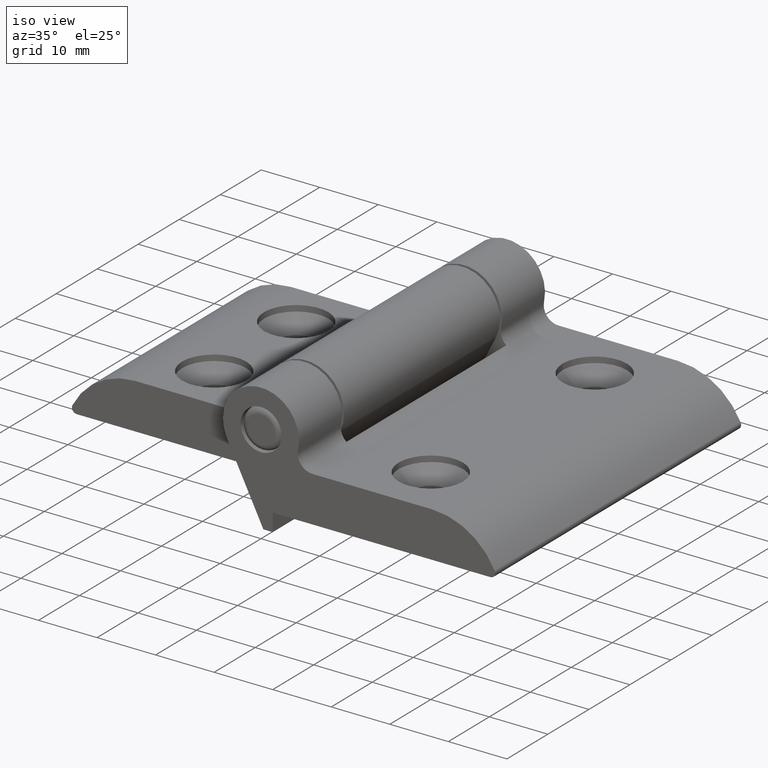
[diagram: clean part render]
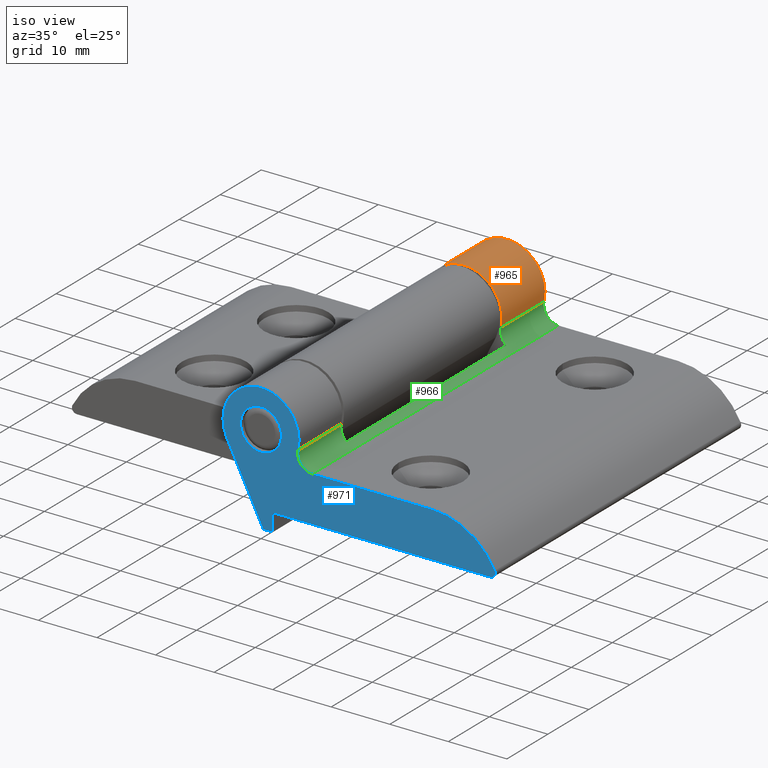
[diagram: same view with three faces highlighted in distinct colors, each labeled with its STEP entity id]
A machine part, iso view with three faces highlighted in distinct colors.
Their STEP definitions:

[orange] entity #965 — the highlighted cylindrical surface (partial cylindrical patch) has radius 6.5 mm, axis along (0, 1, 0).
#92=CYLINDRICAL_SURFACE('',#1127,6.5);
#122=FACE_OUTER_BOUND('',#173,.T.);
#173=EDGE_LOOP('',(#743,#744,#745,#746));
#248=LINE('',#1616,#315);
#251=LINE('',#1624,#318);
#315=VECTOR('',#1312,10.);
#318=VECTOR('',#1321,10.);
#371=CIRCLE('',#1116,6.5);
#375=CIRCLE('',#1128,6.5);
#441=VERTEX_POINT('',#1575);
#442=VERTEX_POINT('',#1577);
#455=VERTEX_POINT('',#1615);
#457=VERTEX_POINT('',#1623);
#549=EDGE_CURVE('',#442,#441,#371,.T.);
#568=EDGE_CURVE('',#442,#455,#248,.T.);
#572=EDGE_CURVE('',#441,#457,#251,.T.);
#573=EDGE_CURVE('',#455,#457,#375,.T.);
#743=ORIENTED_EDGE('',*,*,#549,.T.);
#744=ORIENTED_EDGE('',*,*,#572,.T.);
#745=ORIENTED_EDGE('',*,*,#573,.F.);
#746=ORIENTED_EDGE('',*,*,#568,.F.);
#965=ADVANCED_FACE('',(#122),#92,.T.);
#1116=AXIS2_PLACEMENT_3D('',#1578,#1278,#1279);
#1127=AXIS2_PLACEMENT_3D('',#1622,#1319,#1320);
#1128=AXIS2_PLACEMENT_3D('',#1625,#1322,#1323);
#1278=DIRECTION('center_axis',(-9.14356323852182E-17,1.,-3.21321186532551E-17));
#1279=DIRECTION('ref_axis',(-0.893929642887644,0.,-0.448207310925167));
#1312=DIRECTION('',(0.,1.,0.));
#1319=DIRECTION('center_axis',(0.,1.,0.));
#1320=DIRECTION('ref_axis',(-0.120042723176291,0.,0.992768726649072));
#1321=DIRECTION('',(0.,1.,0.));
#1322=DIRECTION('center_axis',(0.,1.,0.));
#1323=DIRECTION('ref_axis',(-0.893929642887644,0.,-0.448207310925167));
#1575=CARTESIAN_POINT('',(6.3374742797832,19.5,-1.44444444444445));
#1577=CARTESIAN_POINT('',(-5.81054267876969,19.5,-2.91334752101359));
#1578=CARTESIAN_POINT('Origin',(0.,19.5,-1.38777878078145E-15));
#1615=CARTESIAN_POINT('',(-5.81054267876969,30.,-2.91334752101359));
#1616=CARTESIAN_POINT('',(-5.81054267876969,0.,-2.91334752101359));
#1622=CARTESIAN_POINT('Origin',(0.,0.,-1.38777878078145E-15));
#1623=CARTESIAN_POINT('',(6.3374742797832,30.,-1.44444444444445));
#1624=CARTESIAN_POINT('',(6.3374742797832,0.,-1.44444444444445));
#1625=CARTESIAN_POINT('Origin',(0.,30.,-1.38777878078145E-15));

[blue] entity #971 — the highlighted planar face has unit normal (0, 1, 0).
#37=B_SPLINE_CURVE_WITH_KNOTS('',3,(#1668,#1669,#1670,#1671,#1672,#1673),
 .UNSPECIFIED.,.F.,.F.,(4,1,1,4),(0.228202346334164,0.285714285714286,0.571428571428571,
1.),.UNSPECIFIED.);
#42=B_SPLINE_CURVE_WITH_KNOTS('',3,(#1696,#1697,#1698,#1699),
 .UNSPECIFIED.,.F.,.F.,(4,4),(0.,0.228202346334164),.UNSPECIFIED.);
#55=FACE_BOUND('',#182,.T.);
#75=PLANE('',#1138);
#128=FACE_OUTER_BOUND('',#181,.T.);
#181=EDGE_LOOP('',(#782,#783,#784,#785,#786,#787,#788,#789,#790,#791));
#182=EDGE_LOOP('',(#792));
#237=LINE('',#1594,#304);
#242=LINE('',#1604,#309);
#246=LINE('',#1612,#313);
#256=LINE('',#1702,#323);
#257=LINE('',#1706,#324);
#304=VECTOR('',#1291,10.);
#309=VECTOR('',#1300,10.);
#313=VECTOR('',#1308,10.);
#323=VECTOR('',#1346,10.);
#324=VECTOR('',#1351,10.);
#374=CIRCLE('',#1126,6.5);
#376=CIRCLE('',#1130,2.5);
#380=CIRCLE('',#1136,3.5);
#381=CIRCLE('',#1139,12.);
#448=VERTEX_POINT('',#1591);
#449=VERTEX_POINT('',#1593);
#452=VERTEX_POINT('',#1603);
#454=VERTEX_POINT('',#1611);
#456=VERTEX_POINT('',#1619);
#458=VERTEX_POINT('',#1627);
#462=VERTEX_POINT('',#1639);
#463=VERTEX_POINT('',#1666);
#464=VERTEX_POINT('',#1667);
#468=VERTEX_POINT('',#1691);
#469=VERTEX_POINT('',#1704);
#557=EDGE_CURVE('',#449,#448,#237,.T.);
#562=EDGE_CURVE('',#452,#449,#242,.T.);
#566=EDGE_CURVE('',#454,#452,#246,.T.);
#570=EDGE_CURVE('',#456,#454,#374,.T.);
#574=EDGE_CURVE('',#458,#456,#376,.T.);
#581=EDGE_CURVE('',#462,#462,#380,.T.);
#582=EDGE_CURVE('',#463,#464,#37,.T.);
#587=EDGE_CURVE('',#468,#463,#42,.T.);
#589=EDGE_CURVE('',#448,#464,#256,.T.);
#590=EDGE_CURVE('',#468,#469,#381,.T.);
#591=EDGE_CURVE('',#469,#458,#257,.T.);
#782=ORIENTED_EDGE('',*,*,#582,.F.);
#783=ORIENTED_EDGE('',*,*,#587,.F.);
#784=ORIENTED_EDGE('',*,*,#590,.T.);
#785=ORIENTED_EDGE('',*,*,#591,.T.);
#786=ORIENTED_EDGE('',*,*,#574,.T.);
#787=ORIENTED_EDGE('',*,*,#570,.T.);
#788=ORIENTED_EDGE('',*,*,#566,.T.);
#789=ORIENTED_EDGE('',*,*,#562,.T.);
#790=ORIENTED_EDGE('',*,*,#557,.T.);
#791=ORIENTED_EDGE('',*,*,#589,.T.);
#792=ORIENTED_EDGE('',*,*,#581,.T.);
#971=ADVANCED_FACE('',(#128,#55),#75,.F.);
#1126=AXIS2_PLACEMENT_3D('',#1620,#1316,#1317);
#1130=AXIS2_PLACEMENT_3D('',#1628,#1326,#1327);
#1136=AXIS2_PLACEMENT_3D('',#1641,#1341,#1342);
#1138=AXIS2_PLACEMENT_3D('',#1703,#1347,#1348);
#1139=AXIS2_PLACEMENT_3D('',#1705,#1349,#1350);
#1291=DIRECTION('',(1.85037170770859E-16,0.,1.));
#1300=DIRECTION('',(1.,0.,0.));
#1308=DIRECTION('',(0.448207310925167,0.,-0.893929642887644));
#1316=DIRECTION('center_axis',(0.,-1.,0.));
#1317=DIRECTION('ref_axis',(-0.893929642887644,0.,-0.448207310925167));
#1326=DIRECTION('center_axis',(0.,1.,0.));
#1327=DIRECTION('ref_axis',(0.,0.,1.));
#1341=DIRECTION('center_axis',(0.,1.,0.));
#1342=DIRECTION('ref_axis',(-1.,0.,0.));
#1346=DIRECTION('',(1.,0.,0.));
#1347=DIRECTION('center_axis',(0.,1.,0.));
#1348=DIRECTION('ref_axis',(0.,0.,1.));
#1349=DIRECTION('center_axis',(0.,-1.,0.));
#1350=DIRECTION('ref_axis',(0.,0.,1.));
#1351=DIRECTION('',(-1.,0.,1.087908341283E-16));
#1591=CARTESIAN_POINT('',(2.,-30.,-12.3));
#1593=CARTESIAN_POINT('',(2.,-30.,-15.3));
#1594=CARTESIAN_POINT('',(2.,-30.,-12.3));
#1603=CARTESIAN_POINT('',(0.399999999999999,-30.,-15.3));
#1604=CARTESIAN_POINT('',(2.,-30.,-15.3));
#1611=CARTESIAN_POINT('',(-5.81054267876969,-30.,-2.91334752101359));
#1612=CARTESIAN_POINT('',(0.399999999999999,-30.,-15.3));
#1619=CARTESIAN_POINT('',(6.3374742797832,-30.,-1.44444444444445));
#1620=CARTESIAN_POINT('Origin',(0.,-30.,-1.38777878078145E-15));
#1627=CARTESIAN_POINT('',(8.77496438739212,-30.,-4.5));
#1628=CARTESIAN_POINT('Origin',(8.77496438739212,-30.,-2.));
#1639=CARTESIAN_POINT('',(3.5,-30.,-1.81640516048302E-15));
#1641=CARTESIAN_POINT('Origin',(0.,-30.,-1.38777878078145E-15));
#1666=CARTESIAN_POINT('',(40.,-30.,-11.4883954511528));
#1667=CARTESIAN_POINT('',(39.1883954511527,-30.,-12.3));
#1668=CARTESIAN_POINT('Ctrl Pts',(39.9997218378176,-30.,-11.488161456285));
#1669=CARTESIAN_POINT('Ctrl Pts',(39.999756441912,-30.,-11.5197933238789));
#1670=CARTESIAN_POINT('Ctrl Pts',(39.9889176891916,-30.,-11.7085911498544));
#1671=CARTESIAN_POINT('Ctrl Pts',(39.8135844392406,-30.,-12.1166805367457));
#1672=CARTESIAN_POINT('Ctrl Pts',(39.4243687454637,-30.,-12.3));
#1673=CARTESIAN_POINT('Ctrl Pts',(39.1883954511527,-30.,-12.3));
#1691=CARTESIAN_POINT('',(39.9140261061395,-30.,-11.1248543994776));
#1696=CARTESIAN_POINT('Ctrl Pts',(39.9140261061395,-30.,-11.1248543994776));
#1697=CARTESIAN_POINT('Ctrl Pts',(39.9703080039166,-30.,-11.237193487896));
#1698=CARTESIAN_POINT('Ctrl Pts',(39.9995845317968,-30.,-11.3626489717178));
#1699=CARTESIAN_POINT('Ctrl Pts',(39.9997218378176,-30.,-11.488161456285));
#1702=CARTESIAN_POINT('',(40.,-30.,-12.3));
#1703=CARTESIAN_POINT('Origin',(14.258255673457,-30.,-7.13183282613105));
#1704=CARTESIAN_POINT('',(29.1851953323234,-30.,-4.5));
#1705=CARTESIAN_POINT('Origin',(29.1851953323234,-30.,-16.5));
#1706=CARTESIAN_POINT('',(8.77496438739212,-30.,-4.5));

[green] entity #966 — the highlighted cylindrical surface (edge-blend (fillet) strip) has radius 2.5 mm, axis along (0, 1, 0).
#93=CYLINDRICAL_SURFACE('',#1129,2.5);
#123=FACE_OUTER_BOUND('',#174,.T.);
#174=EDGE_LOOP('',(#747,#748,#749,#750,#751,#752,#753,#754));
#230=LINE('',#1572,#297);
#250=LINE('',#1621,#317);
#251=LINE('',#1624,#318);
#252=LINE('',#1630,#319);
#297=VECTOR('',#1272,10.);
#317=VECTOR('',#1318,10.);
#318=VECTOR('',#1321,10.);
#319=VECTOR('',#1328,10.);
#366=CIRCLE('',#1109,2.5);
#370=CIRCLE('',#1115,2.5);
#376=CIRCLE('',#1130,2.5);
#377=CIRCLE('',#1131,2.5);
#430=VERTEX_POINT('',#1550);
#431=VERTEX_POINT('',#1551);
#440=VERTEX_POINT('',#1571);
#441=VERTEX_POINT('',#1575);
#456=VERTEX_POINT('',#1619);
#457=VERTEX_POINT('',#1623);
#458=VERTEX_POINT('',#1627);
#459=VERTEX_POINT('',#1629);
#536=EDGE_CURVE('',#430,#431,#366,.T.);
#546=EDGE_CURVE('',#440,#430,#230,.T.);
#548=EDGE_CURVE('',#441,#440,#370,.T.);
#571=EDGE_CURVE('',#456,#431,#250,.T.);
#572=EDGE_CURVE('',#441,#457,#251,.T.);
#574=EDGE_CURVE('',#458,#456,#376,.T.);
#575=EDGE_CURVE('',#459,#458,#252,.T.);
#576=EDGE_CURVE('',#457,#459,#377,.T.);
#747=ORIENTED_EDGE('',*,*,#548,.T.);
#748=ORIENTED_EDGE('',*,*,#546,.T.);
#749=ORIENTED_EDGE('',*,*,#536,.T.);
#750=ORIENTED_EDGE('',*,*,#571,.F.);
#751=ORIENTED_EDGE('',*,*,#574,.F.);
#752=ORIENTED_EDGE('',*,*,#575,.F.);
#753=ORIENTED_EDGE('',*,*,#576,.F.);
#754=ORIENTED_EDGE('',*,*,#572,.F.);
#966=ADVANCED_FACE('',(#123),#93,.F.);
#1109=AXIS2_PLACEMENT_3D('',#1552,#1256,#1257);
#1115=AXIS2_PLACEMENT_3D('',#1576,#1276,#1277);
#1129=AXIS2_PLACEMENT_3D('',#1626,#1324,#1325);
#1130=AXIS2_PLACEMENT_3D('',#1628,#1326,#1327);
#1131=AXIS2_PLACEMENT_3D('',#1631,#1329,#1330);
#1256=DIRECTION('center_axis',(-9.14356323852182E-17,1.,-3.21321186532551E-17));
#1257=DIRECTION('ref_axis',(0.,0.,1.));
#1272=DIRECTION('',(0.,-1.,0.));
#1276=DIRECTION('center_axis',(9.14356323852182E-17,-1.,3.21321186532551E-17));
#1277=DIRECTION('ref_axis',(0.,0.,1.));
#1318=DIRECTION('',(0.,1.,0.));
#1321=DIRECTION('',(0.,1.,0.));
#1324=DIRECTION('center_axis',(0.,1.,0.));
#1325=DIRECTION('ref_axis',(0.,0.,1.));
#1326=DIRECTION('center_axis',(0.,1.,0.));
#1327=DIRECTION('ref_axis',(0.,0.,1.));
#1328=DIRECTION('',(0.,-1.,0.));
#1329=DIRECTION('center_axis',(0.,-1.,0.));
#1330=DIRECTION('ref_axis',(0.,0.,1.));
#1550=CARTESIAN_POINT('',(7.23266846303572,-19.5,-3.96756785949396));
#1551=CARTESIAN_POINT('',(6.3374742797832,-19.5,-1.44444444444445));
#1552=CARTESIAN_POINT('Origin',(8.77496438739212,-19.5,-2.));
#1571=CARTESIAN_POINT('',(7.23266846303572,19.5,-3.96756785949396));
#1572=CARTESIAN_POINT('',(7.23266846303572,0.,-3.96756785949396));
#1575=CARTESIAN_POINT('',(6.3374742797832,19.5,-1.44444444444445));
#1576=CARTESIAN_POINT('Origin',(8.77496438739212,19.5,-2.));
#1619=CARTESIAN_POINT('',(6.3374742797832,-30.,-1.44444444444445));
#1621=CARTESIAN_POINT('',(6.3374742797832,0.,-1.44444444444445));
#1623=CARTESIAN_POINT('',(6.3374742797832,30.,-1.44444444444445));
#1624=CARTESIAN_POINT('',(6.3374742797832,0.,-1.44444444444445));
#1626=CARTESIAN_POINT('Origin',(8.77496438739212,0.,-2.));
#1627=CARTESIAN_POINT('',(8.77496438739212,-30.,-4.5));
#1628=CARTESIAN_POINT('Origin',(8.77496438739212,-30.,-2.));
#1629=CARTESIAN_POINT('',(8.77496438739212,30.,-4.5));
#1630=CARTESIAN_POINT('',(8.77496438739212,0.,-4.5));
#1631=CARTESIAN_POINT('Origin',(8.77496438739212,30.,-2.));